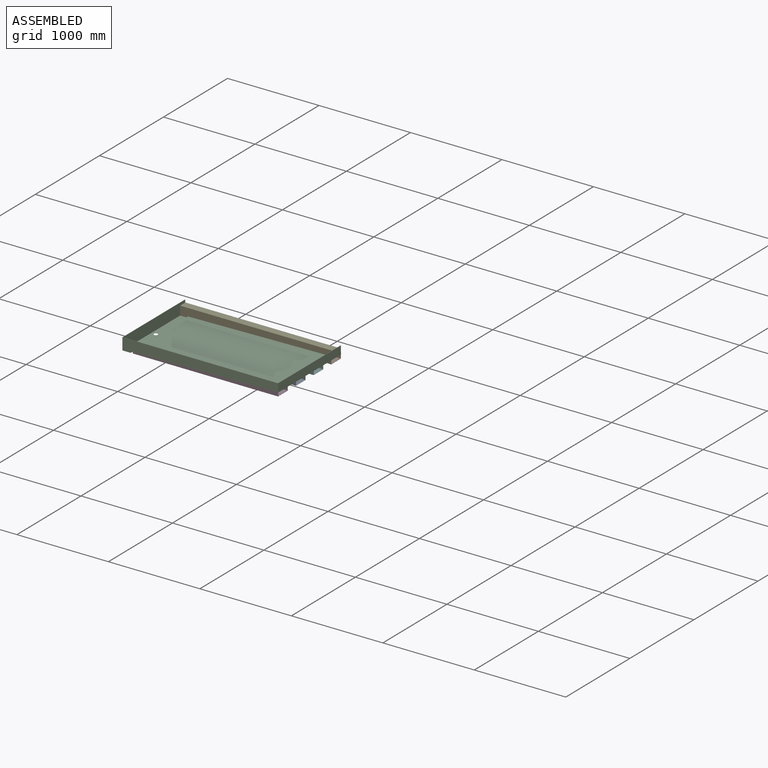
[diagram: assembled view]
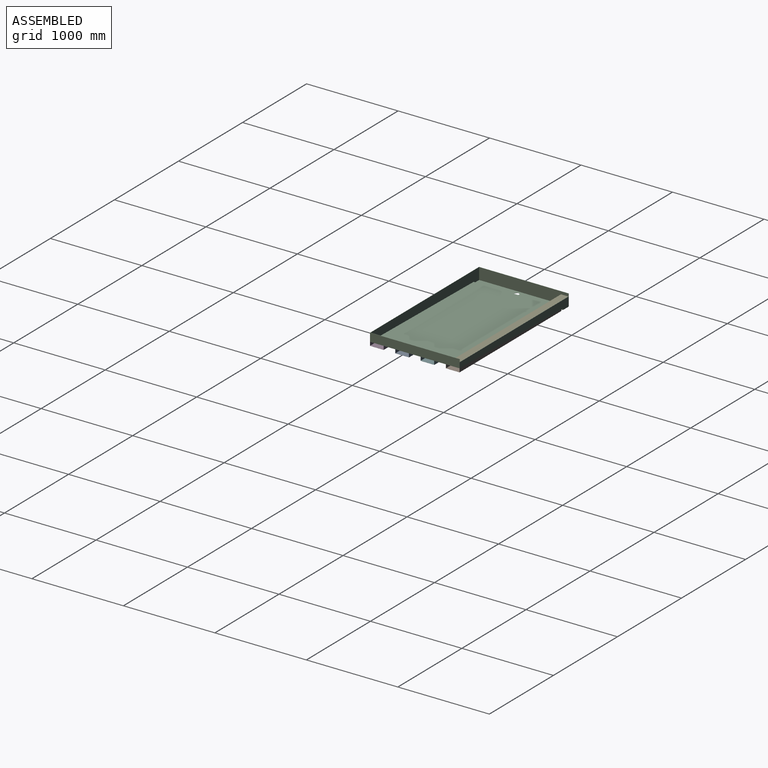
[diagram: assembled view, second angle]
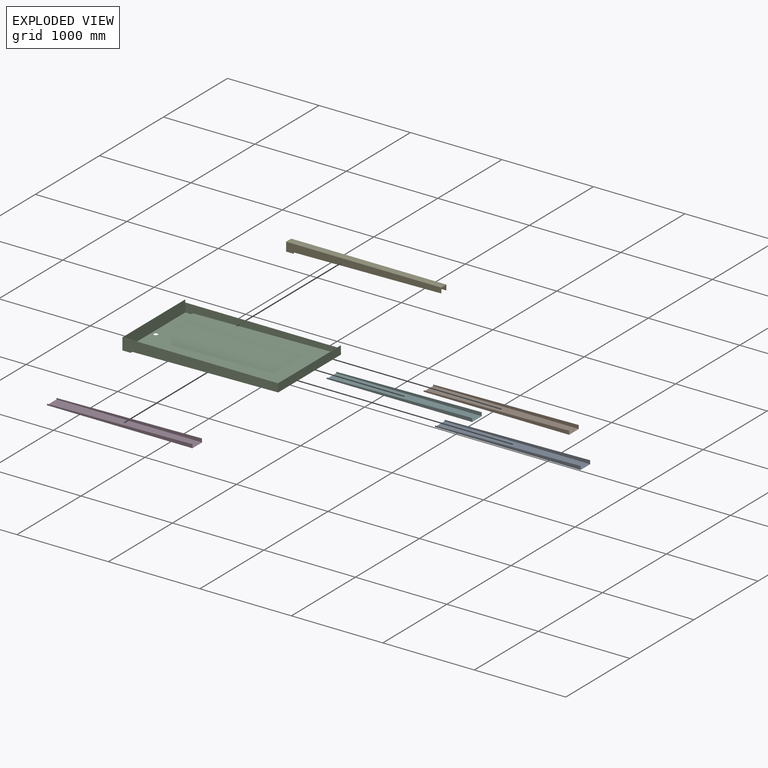
[diagram: exploded view]
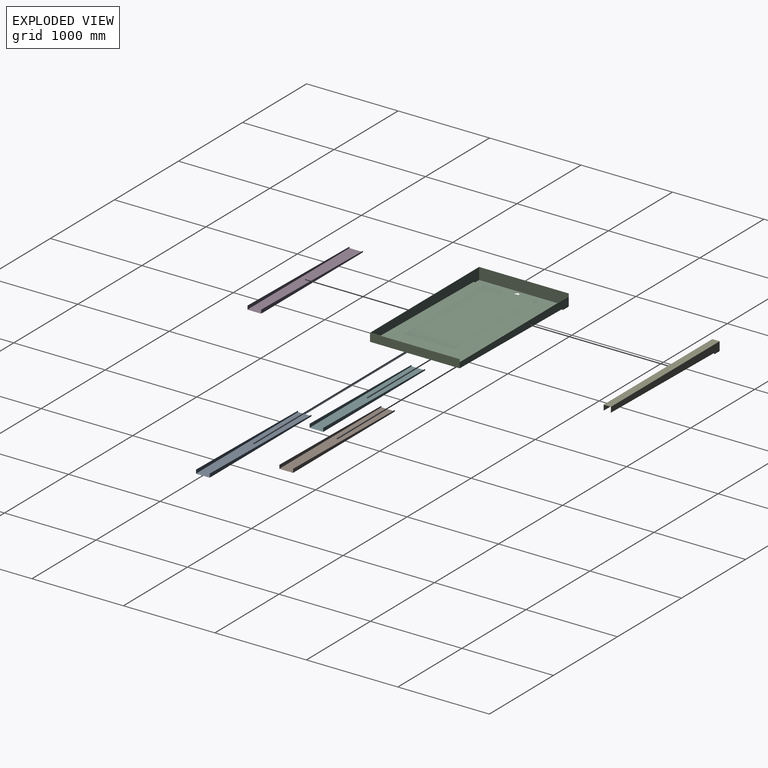
[diagram: exploded view, second angle]
ASSEMBLY  parts=6 mates=2
PART A: 10 faces, bbox 1590x150x40 mm
  f0: plane 1590x25.63mm, normal (-0.02,0,1), area 1908.2mm2, adj f1,f2,f4,f7
  f1: plane 150x14.37mm, normal (-1,0,0), area 211.6mm2, adj f0,f3,f4,f5,f6,f7,f8,f9
  f2: plane 150x40mm, normal (1,0,0), area 273.1mm2, adj f0,f3,f4,f5,f6,f7,f8,f9
  f3: plane 1590x25.63mm, normal (-0.02,0,1), area 1908.2mm2, adj f1,f2,f6,f9
  f4: plane 1590x40mm, normal (0,-1,0), area 43217.1mm2, adj f0,f1,f2,f5
  f5: plane 1590x150mm, normal (0,0,-1), area 238500mm2, adj f1,f2,f4,f6
  f6: plane 1590x40mm, normal (0,1,0), area 43217.1mm2, adj f1,f2,f3,f5
  f7: plane 1590x38.8mm, normal (0,1,0), area 41309.1mm2, adj f0,f1,f2,f8
  f8: plane 1590x147.6mm, normal (0,0,1), area 234684mm2, adj f1,f2,f7,f9
  f9: plane 1590x38.8mm, normal (0,-1,0), area 41309.1mm2, adj f1,f2,f3,f8
PART B: same geometry as A
PART C: 21 faces, bbox 1703x980x130 mm
  f0: plane 1703x130mm, normal (0,1,0), area 126728.7mm2, adj f2,f3,f4,f5,f6,f7,f18,f19
  f1: plane 1697.96x97.5mm, normal (0,-1,0), area 122039.5mm2, adj f9,f10,f11,f12,f13,f19
  f2: plane 1701.55x980mm, normal (0,0,1), area 9129.3mm2, adj f0,f3,f7,f8,f9,f13,f14,f16
  f3: plane 980x130mm, normal (-1,0,0), area 127400mm2, adj f0,f2,f4,f8
  f4: plane 980x90mm, normal (0,0,-1), area 86390.4mm2, adj f0,f3,f5,f8,f15
  f5: plane 980x14mm, normal (1,0,0), area 13720mm2, adj f0,f4,f6,f8
  f6: plane 1613x980mm, normal (0.02,0,-1), area 1580945.3mm2, adj f0,f5,f7,f8
  f7: plane 980x90mm, normal (1,0,0.02), area 88211.5mm2, adj f0,f2,f6,f8,f18
  f8: plane 1703x130mm, normal (0,-1,0), area 177773.7mm2, adj f2,f3,f4,f5,f6,f7
  f9: plane 975x127.5mm, normal (1,0,0), area 124312.5mm2, adj f1,f2,f10,f14,f16
  f10: plane 975x85mm, normal (0,0,1), area 81065.4mm2, adj f1,f9,f11,f14,f15
  f11: plane 975x13.96mm, normal (-1,0,0), area 13611mm2, adj f1,f10,f12,f14
  f12: plane 1612.96x975mm, normal (-0.02,0,1), area 1572840.3mm2, adj f1,f11,f13,f14
  f13: plane 975x87.54mm, normal (-1,0,-0.02), area 85363.2mm2, adj f1,f2,f12,f14,f17
  f14: plane 1697.96x127.5mm, normal (0,1,0), area 172943.2mm2, adj f2,f9,f10,f11,f12,f13
  f15: cylinder r=24mm len=48mm, axis (0,0,1), area 377mm2, adj f4,f10
  f16: plane 30x2.45mm, normal (0,1,0), area 73.5mm2, adj f2,f9,f19,f20
  f17: plane 30x2.5mm, normal (0,1,0), area 67.8mm2, adj f2,f13,f18,f19
  f18: plane 30x2.5mm, normal (-1,0,0), area 75mm2, adj f0,f7,f17,f19
  f19: plane 1701.5x2.5mm, normal (0,0,1), area 4253.8mm2, adj f0,f1,f16,f17,f18,f20
  f20: plane 30x2.5mm, normal (1,0,0), area 75mm2, adj f0,f2,f16,f19
PART D: same geometry as A
PART E: 14 faces, bbox 1697x80x97.5 mm
  f0: plane 1612.96x26mm, normal (0.02,0,-1), area 2581.1mm2, adj f2,f4,f8,f12
  f1: plane 1612.96x26mm, normal (0.02,0,-1), area 2581.1mm2, adj f3,f4,f7,f11
  f2: plane 13.96x1.6mm, normal (1,0,0), area 22.3mm2, adj f0,f6,f8,f12
  f3: plane 13.96x1.6mm, normal (1,0,0), area 22.3mm2, adj f1,f5,f7,f11
  f4: plane 80x57.54mm, normal (1,0,0.02), area 307mm2, adj f0,f1,f7,f8,f10,f11,f12,f13
  f5: plane 84x1.6mm, normal (0,0,-1), area 134.4mm2, adj f3,f7,f9,f11
  f6: plane 84x1.6mm, normal (0,0,-1), area 134.4mm2, adj f2,f8,f9,f12
  f7: plane 1696.96x97.5mm, normal (0,1,0), area 121942mm2, adj f1,f3,f4,f5,f9,f10
  f8: plane 1696.96x97.5mm, normal (0,-1,0), area 121942mm2, adj f0,f2,f4,f6,f9,f10
  f9: plane 97.5x80mm, normal (-1,0,0), area 434.9mm2, adj f5,f6,f7,f8,f10,f11,f12,f13
  f10: plane 1696.03x80mm, normal (0,0,1), area 135682.6mm2, adj f4,f7,f8,f9
  f11: plane 1696.96x95.9mm, normal (0,-1,0), area 119228.3mm2, adj f1,f3,f4,f5,f9,f13
  f12: plane 1696.96x95.9mm, normal (0,1,0), area 119228.3mm2, adj f0,f2,f4,f6,f9,f13
  f13: plane 1696.06x76.8mm, normal (0,0,-1), area 130257.3mm2, adj f4,f9,f11,f12
PART F: same geometry as A
PLACE A t=(-224.78,-342.38,-127.67)mm
PLACE B t=(-224.78,210.62,-127.67)mm
PLACE C t=(-225.07,176.75,-127.67)mm fixed
PLACE D t=(-224.78,-618.88,-127.67)mm
PLACE E t=(-226.07,176.75,-127.67)mm
PLACE F t=(-224.78,-65.88,-127.67)mm
MATE fastened E.f7 <-> C.f1  axis (0,1,0) through (1270.29,664.25,-27.67)mm
MATE fastened D.f4 <-> C.f8  axis (0,-1,0) through (1274.76,-313.25,-87.67)mm
